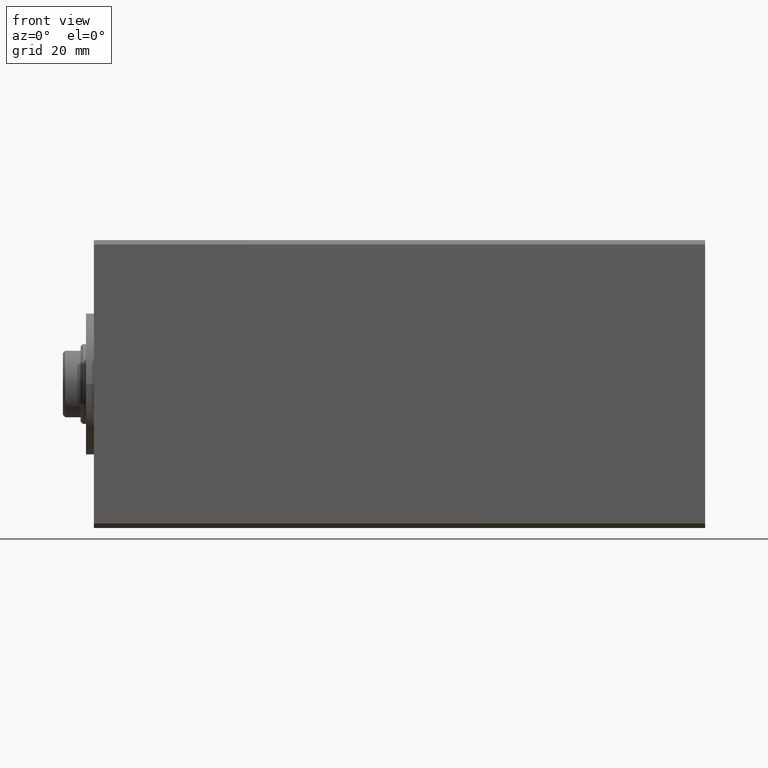
[diagram: clean part render]
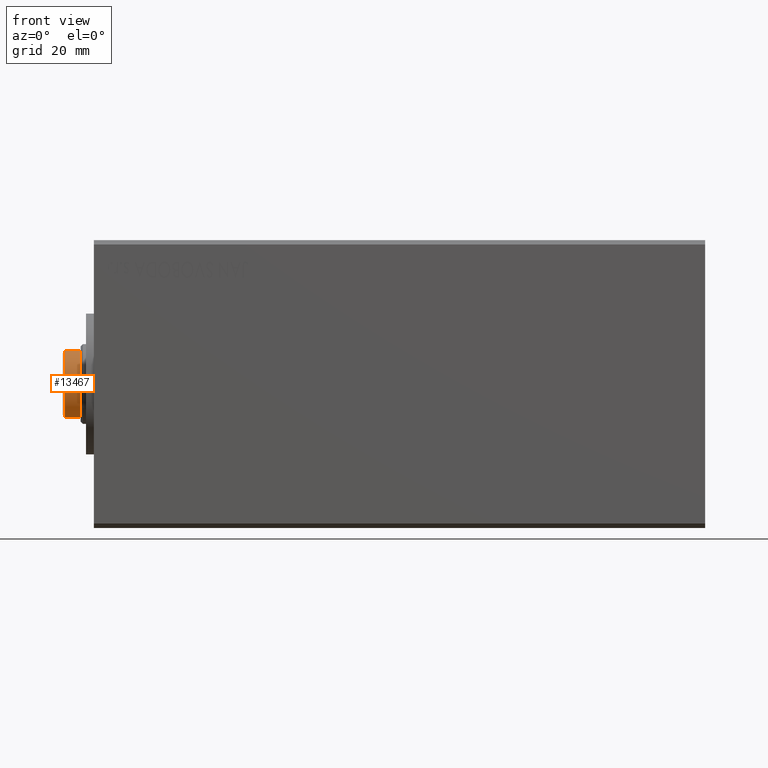
[diagram: same view with one face highlighted and labeled with its STEP entity id]
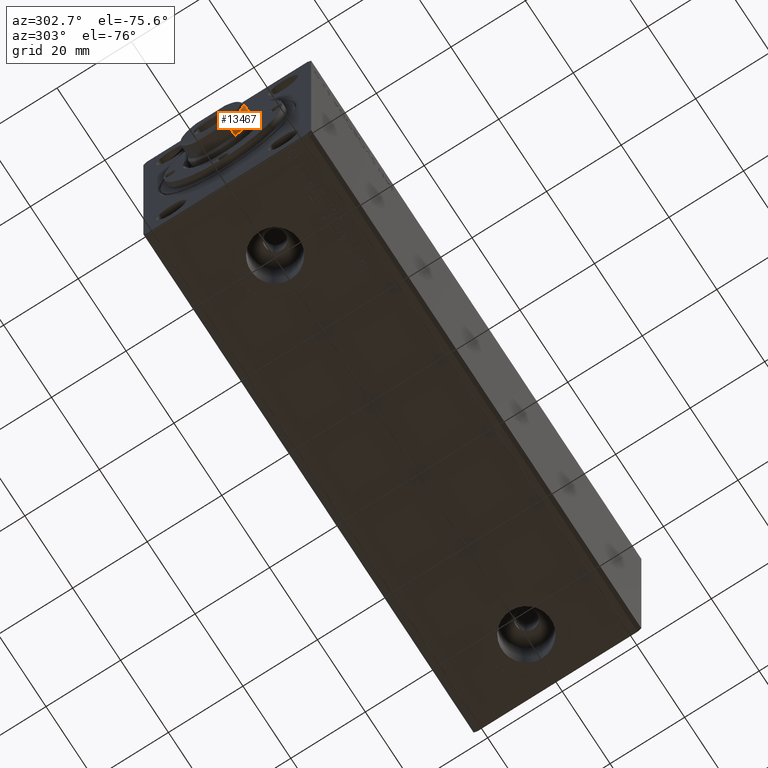
[diagram: same view with one face highlighted and labeled with its STEP entity id]
A machine part, front view. The second image highlights one B-rep face of the part: STEP entity #13467.
A second angle (auxiliary view) of the same face is appended — the face is thin or edge-on in the first view.
In plain terms, the highlighted cylindrical surface (partial cylindrical patch) has radius 8.5 mm, axis along (1, -0, -0).
Its self-contained STEP definition (entity closure, byte-faithful):
#314 = CARTESIAN_POINT ( 'NONE',  ( 0.000000000000000000, 0.000000000000000000, 131.7000000000000171 ) ) ;
#1270 = DIRECTION ( 'NONE',  ( -0.000000000000000000, -0.000000000000000000, -1.000000000000000000 ) ) ;
#1504 = VECTOR ( 'NONE', #5459, 1000.000000000000000 ) ;
#3427 = VECTOR ( 'NONE', #33756, 1000.000000000000000 ) ;
#3945 = CARTESIAN_POINT ( 'NONE',  ( 7.500000000000000000, -4.000000000000001776, 131.7000000000000171 ) ) ;
#5275 = DIRECTION ( 'NONE',  ( -1.000000000000000000, 0.000000000000000000, 0.000000000000000000 ) ) ;
#5459 = DIRECTION ( 'NONE',  ( -0.000000000000000000, -0.000000000000000000, -1.000000000000000000 ) ) ;
#6254 = CARTESIAN_POINT ( 'NONE',  ( 0.000000000000000000, 0.000000000000000000, 128.2000000000000171 ) ) ;
#7865 = ORIENTED_EDGE ( 'NONE', *, *, #40372, .T. ) ;
#8613 = CYLINDRICAL_SURFACE ( 'NONE', #15432, 8.500000000000000000 ) ;
#9386 = DIRECTION ( 'NONE',  ( 1.000000000000000000, 0.000000000000000000, 0.000000000000000000 ) ) ;
#11149 = AXIS2_PLACEMENT_3D ( 'NONE', #314, #13727, #23527 ) ;
#11600 = CIRCLE ( 'NONE', #33702, 8.500000000000000000 ) ;
#12162 = CARTESIAN_POINT ( 'NONE',  ( -7.500000000000000000, -4.000000000000001776, 132.2000000000000171 ) ) ;
#13305 = CIRCLE ( 'NONE', #11149, 8.500000000000000000 ) ;
#13467 = ADVANCED_FACE ( 'NONE', ( #31832 ), #8613, .T. ) ;
#13727 = DIRECTION ( 'NONE',  ( 0.000000000000000000, 0.000000000000000000, -1.000000000000000000 ) ) ;
#14345 = ORIENTED_EDGE ( 'NONE', *, *, #30324, .T. ) ;
#15432 = AXIS2_PLACEMENT_3D ( 'NONE', #21786, #1270, #5275 ) ;
#16999 = ORIENTED_EDGE ( 'NONE', *, *, #34818, .T. ) ;
#18037 = EDGE_CURVE ( 'NONE', #39399, #23023, #30624, .T. ) ;
#21050 = CARTESIAN_POINT ( 'NONE',  ( -7.500000000000000000, -4.000000000000001776, 131.7000000000000171 ) ) ;
#21786 = CARTESIAN_POINT ( 'NONE',  ( 0.000000000000000000, 0.000000000000000000, 132.2000000000000171 ) ) ;
#23023 = VERTEX_POINT ( 'NONE', #40316 ) ;
#23527 = DIRECTION ( 'NONE',  ( 1.000000000000000000, 0.000000000000000000, 0.000000000000000000 ) ) ;
#27754 = EDGE_LOOP ( 'NONE', ( #38967, #7865, #14345, #16999 ) ) ;
#30324 = EDGE_CURVE ( 'NONE', #38770, #38042, #32676, .T. ) ;
#30624 = LINE ( 'NONE', #36880, #3427 ) ;
#31832 = FACE_OUTER_BOUND ( 'NONE', #27754, .T. ) ;
#32676 = LINE ( 'NONE', #12162, #1504 ) ;
#33044 = DIRECTION ( 'NONE',  ( 0.000000000000000000, 0.000000000000000000, 1.000000000000000000 ) ) ;
#33702 = AXIS2_PLACEMENT_3D ( 'NONE', #6254, #33044, #9386 ) ;
#33756 = DIRECTION ( 'NONE',  ( -0.000000000000000000, -0.000000000000000000, -1.000000000000000000 ) ) ;
#34818 = EDGE_CURVE ( 'NONE', #38042, #23023, #11600, .T. ) ;
#36880 = CARTESIAN_POINT ( 'NONE',  ( 7.500000000000000000, -4.000000000000001776, 132.2000000000000171 ) ) ;
#38042 = VERTEX_POINT ( 'NONE', #38937 ) ;
#38770 = VERTEX_POINT ( 'NONE', #21050 ) ;
#38937 = CARTESIAN_POINT ( 'NONE',  ( -7.500000000000000000, -3.999999999999986233, 128.2000000000000171 ) ) ;
#38967 = ORIENTED_EDGE ( 'NONE', *, *, #18037, .F. ) ;
#39399 = VERTEX_POINT ( 'NONE', #3945 ) ;
#40316 = CARTESIAN_POINT ( 'NONE',  ( 7.500000000000000000, -3.999999999999986233, 128.2000000000000171 ) ) ;
#40372 = EDGE_CURVE ( 'NONE', #39399, #38770, #13305, .T. ) ;